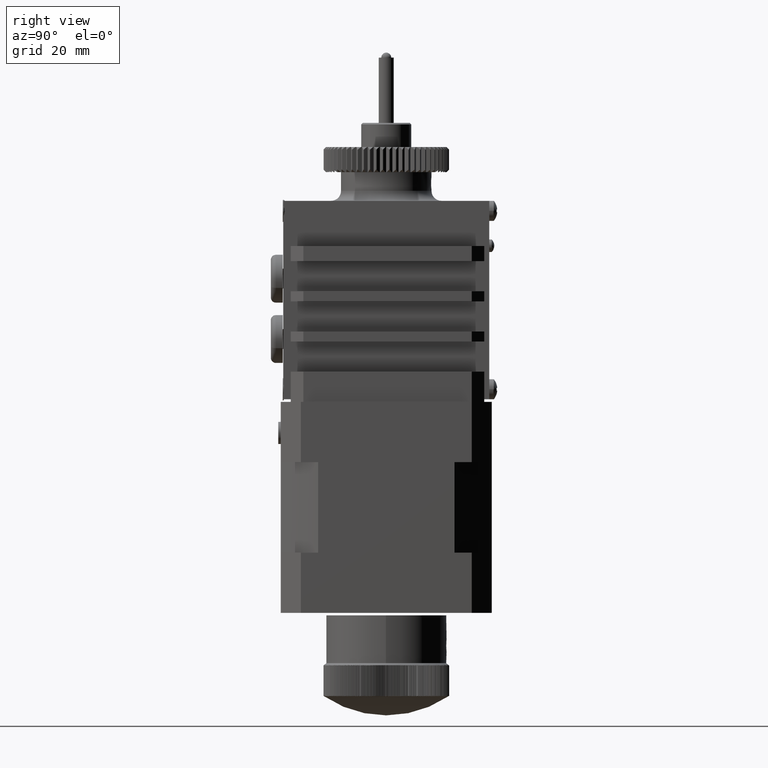
[diagram: clean part render]
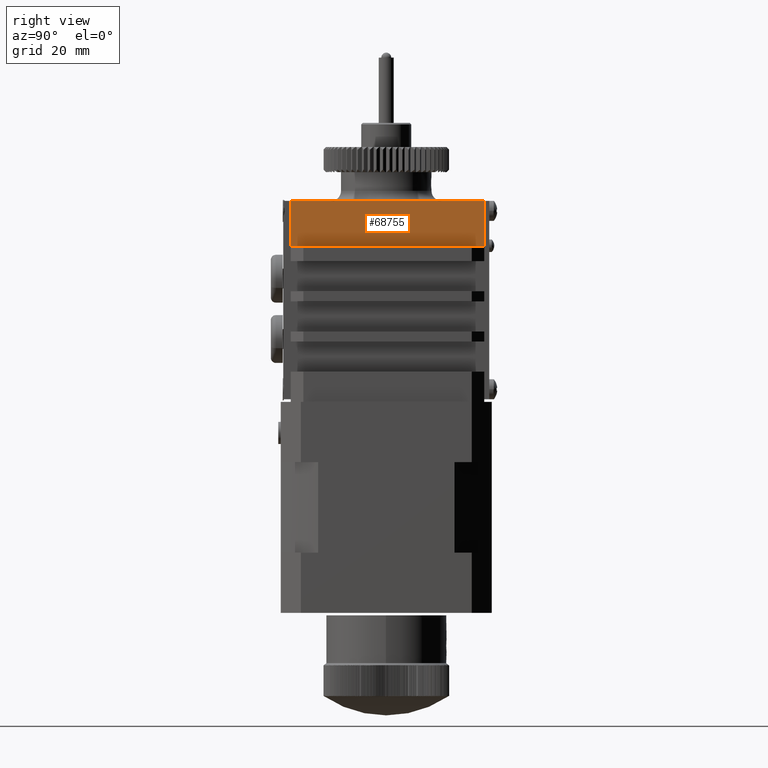
[diagram: same view with one face highlighted and labeled with its STEP entity id]
A machine part, right view. The second image highlights one B-rep face of the part: STEP entity #68755.
In plain terms, the highlighted planar face has unit normal (-1, -0, 0).
Its self-contained STEP definition (entity closure, byte-faithful):
#68599 = FACE_OUTER_BOUND ( 'NONE', #68756, .T. ) ;
#68670 = DIRECTION ( 'NONE',  ( 9.195160571582821400E-017, -1.224606353822377800E-016, 1.000000000000000000 ) ) ;
#68671 = VECTOR ( 'NONE', #68670, 39.37007874015748100 ) ;
#68673 = CARTESIAN_POINT ( 'NONE',  ( -1.445436153030225300, -1.558363746537847900, 0.9639345281714971600 ) ) ;
#68674 = LINE ( 'NONE', #68673, #68671 ) ;
#68678 = DIRECTION ( 'NONE',  ( 9.195160571582818900E-017, -1.224606353822377800E-016, 1.000000000000000000 ) ) ;
#68680 = DIRECTION ( 'NONE',  ( -1.000000000000000000, -2.550043509685906400E-016, 9.195160571582815200E-017 ) ) ;
#68682 = CARTESIAN_POINT ( 'NONE',  ( -1.445436153030225300, -1.558363746537847900, 0.9639345281714971600 ) ) ;
#68683 = AXIS2_PLACEMENT_3D ( 'NONE', #68682, #68680, #68678 ) ;
#68687 = PLANE ( 'NONE',  #68683 ) ;
#68755 = ADVANCED_FACE ( 'NONE', ( #68599 ), #68687, .F. ) ;
#68756 = EDGE_LOOP ( 'NONE', ( #68760, #68829, #68851, #68844 ) ) ;
#68760 = ORIENTED_EDGE ( 'NONE', *, *, #68762, .F. ) ;
#68762 = EDGE_CURVE ( 'NONE', #68823, #68825, #68674, .T. ) ;
#68823 = VERTEX_POINT ( 'NONE', #69001 ) ;
#68825 = VERTEX_POINT ( 'NONE', #69138 ) ;
#68827 = VERTEX_POINT ( 'NONE', #69136 ) ;
#68829 = ORIENTED_EDGE ( 'NONE', *, *, #68830, .T. ) ;
#68830 = EDGE_CURVE ( 'NONE', #68823, #68827, #69131, .T. ) ;
#68844 = ORIENTED_EDGE ( 'NONE', *, *, #68845, .F. ) ;
#68845 = EDGE_CURVE ( 'NONE', #68825, #68854, #69186, .T. ) ;
#68851 = ORIENTED_EDGE ( 'NONE', *, *, #68853, .T. ) ;
#68853 = EDGE_CURVE ( 'NONE', #68827, #68854, #69166, .T. ) ;
#68854 = VERTEX_POINT ( 'NONE', #69158 ) ;
#69001 = CARTESIAN_POINT ( 'NONE',  ( -1.445436153030225300, -1.558363746537847900, 0.9639345281714971600 ) ) ;
#69126 = DIRECTION ( 'NONE',  ( -2.550043509685905900E-016, 1.000000000000000000, 1.224606353822378000E-016 ) ) ;
#69128 = VECTOR ( 'NONE', #69126, 39.37007874015748100 ) ;
#69130 = CARTESIAN_POINT ( 'NONE',  ( -1.445436153030225300, -1.558363746537847900, 0.9639345281714971600 ) ) ;
#69131 = LINE ( 'NONE', #69130, #69128 ) ;
#69136 = CARTESIAN_POINT ( 'NONE',  ( -1.445436153030226000, -0.04261571504178508100, 0.9639345281714972700 ) ) ;
#69138 = CARTESIAN_POINT ( 'NONE',  ( -1.445436153030225300, -1.558363746537847900, 1.318265236832914200 ) ) ;
#69158 = CARTESIAN_POINT ( 'NONE',  ( -1.445436153030226000, -0.04261571504178508100, 1.318265236832914900 ) ) ;
#69160 = DIRECTION ( 'NONE',  ( 9.195160571582821400E-017, -1.224606353822377800E-016, 1.000000000000000000 ) ) ;
#69161 = VECTOR ( 'NONE', #69160, 39.37007874015748100 ) ;
#69163 = CARTESIAN_POINT ( 'NONE',  ( -1.445436153030226000, -0.04261571504178508100, 0.9639345281714972700 ) ) ;
#69166 = LINE ( 'NONE', #69163, #69161 ) ;
#69181 = DIRECTION ( 'NONE',  ( -2.550043509685905900E-016, 1.000000000000000000, 1.224606353822378000E-016 ) ) ;
#69182 = VECTOR ( 'NONE', #69181, 39.37007874015748100 ) ;
#69184 = CARTESIAN_POINT ( 'NONE',  ( -1.445436153030226000, -0.04261571504178508100, 1.318265236832914900 ) ) ;
#69186 = LINE ( 'NONE', #69184, #69182 ) ;